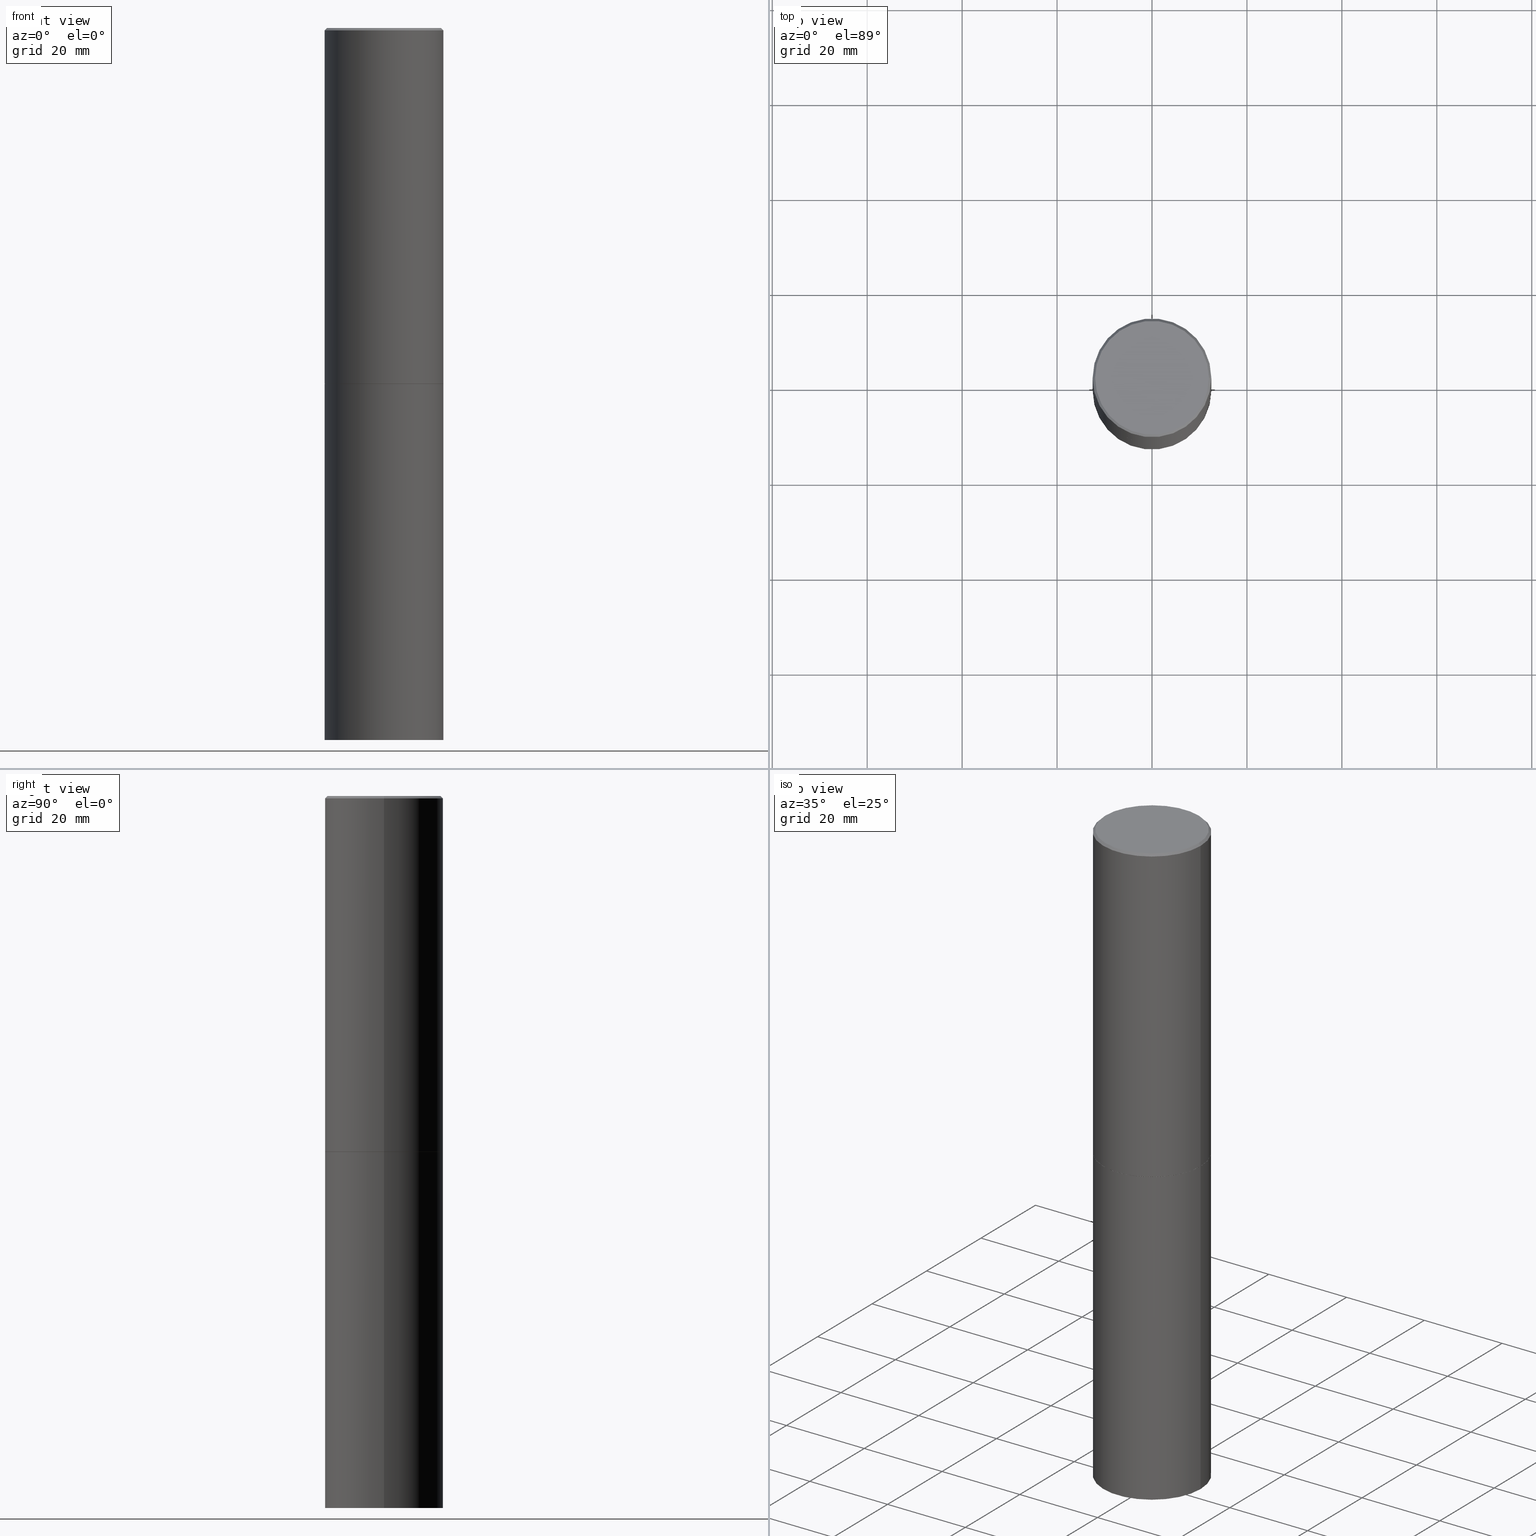
[diagram: canonical four-view strip — front | top / right | iso, engineering-drawing reading convention]
A machine part, canonical four-view strip (front | top / right | iso — engineering-drawing reading convention). The complete STEP part file that produces these views, byte-faithful:
ISO-10303-21;
HEADER;
FILE_DESCRIPTION (( 'STEP AP203' ),
    '1' );
FILE_NAME ('74882.STEP',
    '2024-05-03T15:04:33',
    ( '' ),
    ( '' ),
    'SwSTEP 2.0',
    'SolidWorks 2023',
    '' );
FILE_SCHEMA (( 'CONFIG_CONTROL_DESIGN' ));
ENDSEC;

DATA;
#1 = AXIS2_PLACEMENT_3D ( 'NONE', #193, #281, #167 ) ;
#2 = ADVANCED_FACE ( 'NONE', ( #120 ), #249, .T. ) ;
#3 = ORIENTED_EDGE ( 'NONE', *, *, #211, .T. ) ;
#4 = DIRECTION ( 'NONE',  ( -1.000000000000000000, 6.982962677686265922E-15, -4.876176775795935793E-29 ) ) ;
#5 = EDGE_CURVE ( 'NONE', #226, #203, #245, .T. ) ;
#6 = VERTEX_POINT ( 'NONE', #236 ) ;
#7 = VECTOR ( 'NONE', #366, 39.37007874015748143 ) ;
#8 = ADVANCED_FACE ( 'NONE', ( #47 ), #283, .T. ) ;
#9 = ORIENTED_EDGE ( 'NONE', *, *, #109, .F. ) ;
#10 = EDGE_LOOP ( 'NONE', ( #294, #41, #114, #116 ) ) ;
#11 = CALENDAR_DATE ( 2024, 3, 5 ) ;
#12 = ADVANCED_FACE ( 'NONE', ( #78 ), #76, .T. ) ;
#13 = CIRCLE ( 'NONE', #1, 0.4921499999999999764 ) ;
#14 = APPLICATION_PROTOCOL_DEFINITION ( 'international standard', 'config_control_design', 1994, #247 ) ;
#15 = CARTESIAN_POINT ( 'NONE',  ( 7.220735744022852519E-29, -1.030929694920215502E-14, -2.952700000000000102 ) ) ;
#16 = PERSON_AND_ORGANIZATION ( #33, #363 ) ;
#17 = ORIENTED_EDGE ( 'NONE', *, *, #345, .F. ) ;
#18 = CARTESIAN_POINT ( 'NONE',  ( 4.890937612370296805E-31, -6.982962677686323656E-17, -0.02000000000000009409 ) ) ;
#19 = AXIS2_PLACEMENT_3D ( 'NONE', #327, #299, #51 ) ;
#20 = DIRECTION ( 'NONE',  ( 1.000000000000000000, -6.982962677686265922E-15, 4.876176775795935793E-29 ) ) ;
#21 = CARTESIAN_POINT ( 'NONE',  ( -0.4911499999999999755, -6.814167848168200725E-15, -2.952699999999999214 ) ) ;
#22 = DATE_AND_TIME ( #268, #273 ) ;
#23 = FACE_OUTER_BOUND ( 'NONE', #233, .T. ) ;
#24 = EDGE_CURVE ( 'NONE', #58, #321, #112, .T. ) ;
#25 = DIRECTION ( 'NONE',  ( -2.445468806185136597E-29, 3.491481338843145583E-15, 1.000000000000000000 ) ) ;
#26 = APPROVAL_PERSON_ORGANIZATION ( #180, #326, #238 ) ;
#27 =( NAMED_UNIT ( * ) SI_UNIT ( $, .STERADIAN. ) SOLID_ANGLE_UNIT ( ) );
#28 = ORIENTED_EDGE ( 'NONE', *, *, #264, .F. ) ;
#29 = LINE ( 'NONE', #103, #70 ) ;
#30 = DIRECTION ( 'NONE',  ( -2.445468806185136597E-29, 3.491481338843145583E-15, 1.000000000000000000 ) ) ;
#31 = EDGE_CURVE ( 'NONE', #203, #90, #162, .T. ) ;
#32 = VERTEX_POINT ( 'NONE', #21 ) ;
#33 = PERSON ( 'UNSPECIFIED', 'UNSPECIFIED', 'UNSPECIFIED', ('UNSPECIFIED'), ('UNSPECIFIED'), ('UNSPECIFIED') ) ;
#34 = EDGE_LOOP ( 'NONE', ( #253, #251, #292, #135 ) ) ;
#35 = CIRCLE ( 'NONE', #56, 0.4921499999999996988 ) ;
#36 = CC_DESIGN_APPROVAL ( #326, ( #214 ) ) ;
#37 = DATE_AND_TIME ( #356, #139 ) ;
#38 = VERTEX_POINT ( 'NONE', #266 ) ;
#39 = PERSON_AND_ORGANIZATION ( #33, #363 ) ;
#40 = CARTESIAN_POINT ( 'NONE',  ( 3.436665081823440533E-15, 0.4921499999999793262, -5.905500000000001748 ) ) ;
#41 = ORIENTED_EDGE ( 'NONE', *, *, #345, .T. ) ;
#42 = COORDINATED_UNIVERSAL_TIME_OFFSET ( 5, 0, .BEHIND. ) ;
#43 = APPLICATION_PROTOCOL_DEFINITION ( 'international standard', 'config_control_design', 1994, #201 ) ;
#44 = EDGE_CURVE ( 'NONE', #71, #265, #170, .T. ) ;
#45 = DIRECTION ( 'NONE',  ( -0.7071067811868130271, 7.493145998871311837E-15, 0.7071067811862817853 ) ) ;
#46 = AXIS2_PLACEMENT_3D ( 'NONE', #15, #311, #61 ) ;
#47 = FACE_OUTER_BOUND ( 'NONE', #255, .T. ) ;
#48 =( NAMED_UNIT ( * ) PLANE_ANGLE_UNIT ( ) SI_UNIT ( $, .RADIAN. ) );
#49 = DIRECTION ( 'NONE',  ( -2.445468806185136877E-29, 3.491481338843145188E-15, 1.000000000000000000 ) ) ;
#50 = DIRECTION ( 'NONE',  ( -2.445468806185136877E-29, 3.491481338843145188E-15, 1.000000000000000000 ) ) ;
#51 = DIRECTION ( 'NONE',  ( -1.000000000000000000, 6.982962677686265922E-15, 0.000000000000000000 ) ) ;
#52 =( LENGTH_UNIT ( ) NAMED_UNIT ( * ) SI_UNIT ( $, .METRE. ) );
#53 = CYLINDRICAL_SURFACE ( 'NONE', #288, 0.4921499999999999764 ) ;
#54 = CIRCLE ( 'NONE', #302, 0.4921499999999999764 ) ;
#55 = CARTESIAN_POINT ( 'NONE',  ( 4.890937612370296805E-31, -6.982962677686323656E-17, -0.02000000000000009409 ) ) ;
#56 = AXIS2_PLACEMENT_3D ( 'NONE', #118, #285, #115 ) ;
#57 = AXIS2_PLACEMENT_3D ( 'NONE', #222, #88, #137 ) ;
#58 = VERTEX_POINT ( 'NONE', #83 ) ;
#59 = APPROVAL ( #64, 'UNSPECIFIED' ) ;
#60 = ORIENTED_EDGE ( 'NONE', *, *, #65, .T. ) ;
#61 = DIRECTION ( 'NONE',  ( 1.000000000000000000, -6.982962677686265922E-15, 0.000000000000000000 ) ) ;
#62 = ORIENTED_EDGE ( 'NONE', *, *, #176, .T. ) ;
#63 = AXIS2_PLACEMENT_3D ( 'NONE', #157, #122, #213 ) ;
#64 = APPROVAL_STATUS ( 'not_yet_approved' ) ;
#65 = EDGE_CURVE ( 'NONE', #90, #140, #128, .T. ) ;
#66 = COORDINATED_UNIVERSAL_TIME_OFFSET ( 5, 0, .BEHIND. ) ;
#67 = CARTESIAN_POINT ( 'NONE',  ( 7.220735744022851398E-29, -1.030929694920215344E-14, -2.952699999999999214 ) ) ;
#68 = APPROVAL_ROLE ( '' ) ;
#69 = EDGE_CURVE ( 'NONE', #58, #6, #239, .T. ) ;
#70 = VECTOR ( 'NONE', #337, 39.37007874015748143 ) ;
#71 = VERTEX_POINT ( 'NONE', #242 ) ;
#72 = PERSON_AND_ORGANIZATION_ROLE ( 'design_owner' ) ;
#73 = CC_DESIGN_DATE_AND_TIME_ASSIGNMENT ( #22, #361, ( #214 ) ) ;
#74 = SHAPE_DEFINITION_REPRESENTATION ( #221, #334 ) ;
#75 = ORIENTED_EDGE ( 'NONE', *, *, #261, .F. ) ;
#76 = CYLINDRICAL_SURFACE ( 'NONE', #165, 0.4921499999999998098 ) ;
#77 = PERSON_AND_ORGANIZATION ( #33, #363 ) ;
#78 = FACE_OUTER_BOUND ( 'NONE', #365, .T. ) ;
#79 = LOCAL_TIME ( 11, 4, 33.00000000000000000, #42 ) ;
#80 = LINE ( 'NONE', #298, #138 ) ;
#81 = CARTESIAN_POINT ( 'NONE',  ( 7.218290275216666916E-29, -1.030580546786331359E-14, -2.951700000000000212 ) ) ;
#82 = DIRECTION ( 'NONE',  ( 1.000000000000000000, -6.982962677686265922E-15, 4.876006802227162976E-29 ) ) ;
#83 = CARTESIAN_POINT ( 'NONE',  ( 0.4921499999999999764, -2.405560812836148932E-14, -5.905499999999999972 ) ) ;
#84 = AXIS2_PLACEMENT_3D ( 'NONE', #297, #333, #82 ) ;
#85 = CARTESIAN_POINT ( 'NONE',  ( 7.220735744022851398E-29, -1.030929694920215344E-14, -2.952699999999999214 ) ) ;
#86 = CC_DESIGN_DATE_AND_TIME_ASSIGNMENT ( #257, #153, ( #303 ) ) ;
#87 = VECTOR ( 'NONE', #218, 39.37007874015748143 ) ;
#88 = DIRECTION ( 'NONE',  ( -2.445468806185136597E-29, 3.491481338843145583E-15, 1.000000000000000000 ) ) ;
#89 = DIRECTION ( 'NONE',  ( 2.438088387897960049E-29, -3.491481338843145188E-15, -1.000000000000000000 ) ) ;
#90 = VERTEX_POINT ( 'NONE', #187 ) ;
#91 = EDGE_LOOP ( 'NONE', ( #17, #346, #309, #111 ) ) ;
#92 = DIRECTION ( 'NONE',  ( 1.000000000000000000, -6.982962677686264344E-15, 0.000000000000000000 ) ) ;
#93 = CONICAL_SURFACE ( 'NONE', #105, 0.4921499999999996988, 0.7853981633974472798 ) ;
#94 = DIRECTION ( 'NONE',  ( 1.000000000000000000, -6.982962677686265922E-15, 4.876176775795935793E-29 ) ) ;
#95 = EDGE_CURVE ( 'NONE', #203, #38, #106, .T. ) ;
#96 = ORIENTED_EDGE ( 'NONE', *, *, #256, .T. ) ;
#97 = CC_DESIGN_PERSON_AND_ORGANIZATION_ASSIGNMENT ( #354, #72, ( #175 ) ) ;
#98 = FACE_OUTER_BOUND ( 'NONE', #206, .T. ) ;
#99 = VECTOR ( 'NONE', #125, 39.37007874015748143 ) ;
#100 = ORIENTED_EDGE ( 'NONE', *, *, #24, .F. ) ;
#101 = FACE_OUTER_BOUND ( 'NONE', #195, .T. ) ;
#102 = CC_DESIGN_PERSON_AND_ORGANIZATION_ASSIGNMENT ( #39, #146, ( #303 ) ) ;
#103 = CARTESIAN_POINT ( 'NONE',  ( -0.4921499999999996988, 3.366835455046430506E-15, -0.02000000000000009409 ) ) ;
#104 = UNCERTAINTY_MEASURE_WITH_UNIT (LENGTH_MEASURE( 1.000000000000000082E-05 ), #325, 'distance_accuracy_value', 'NONE');
#105 = AXIS2_PLACEMENT_3D ( 'NONE', #18, #269, #182 ) ;
#106 = LINE ( 'NONE', #216, #240 ) ;
#107 = DIRECTION ( 'NONE',  ( 1.000000000000000000, -6.982962677686265922E-15, 4.876006802227162976E-29 ) ) ;
#108 = DIRECTION ( 'NONE',  ( -2.445468806185136597E-29, 3.491481338843145583E-15, 1.000000000000000000 ) ) ;
#109 = EDGE_CURVE ( 'NONE', #71, #38, #184, .T. ) ;
#110 = CIRCLE ( 'NONE', #46, 0.4921499999999999764 ) ;
#111 = ORIENTED_EDGE ( 'NONE', *, *, #332, .F. ) ;
#112 = CIRCLE ( 'NONE', #328, 0.4921499999999999764 ) ;
#113 = EDGE_LOOP ( 'NONE', ( #75, #28 ) ) ;
#114 = ORIENTED_EDGE ( 'NONE', *, *, #256, .F. ) ;
#115 = DIRECTION ( 'NONE',  ( 1.000000000000000000, -6.982962677686265922E-15, 0.000000000000000000 ) ) ;
#116 = ORIENTED_EDGE ( 'NONE', *, *, #69, .F. ) ;
#117 = PERSON_AND_ORGANIZATION_ROLE ( 'creator' ) ;
#118 = CARTESIAN_POINT ( 'NONE',  ( 4.890937612370296805E-31, -6.982962677686323656E-17, -0.02000000000000009409 ) ) ;
#119 = CC_DESIGN_PERSON_AND_ORGANIZATION_ASSIGNMENT ( #77, #185, ( #214 ) ) ;
#120 = FACE_OUTER_BOUND ( 'NONE', #91, .T. ) ;
#121 = AXIS2_PLACEMENT_3D ( 'NONE', #164, #30, #276 ) ;
#122 = DIRECTION ( 'NONE',  ( 2.438088387897960049E-29, -3.491481338843145188E-15, -1.000000000000000000 ) ) ;
#123 = DATE_AND_TIME ( #155, #79 ) ;
#124 = DIRECTION ( 'NONE',  ( -2.445468806185136597E-29, 3.491481338843145583E-15, 1.000000000000000000 ) ) ;
#125 = DIRECTION ( 'NONE',  ( -2.445468806185136877E-29, 3.491481338843145188E-15, 1.000000000000000000 ) ) ;
#126 = CONICAL_SURFACE ( 'NONE', #246, 0.4911499999999999755, 0.7853981633978239785 ) ;
#127 = CARTESIAN_POINT ( 'NONE',  ( -0.4921499999999998098, 3.496936074043331714E-15, -2.420853904668950949E-29 ) ) ;
#128 = LINE ( 'NONE', #127, #7 ) ;
#129 = EDGE_CURVE ( 'NONE', #265, #71, #223, .T. ) ;
#130 = DIRECTION ( 'NONE',  ( 1.000000000000000000, -6.982962677686264344E-15, 0.000000000000000000 ) ) ;
#131 = DESIGN_CONTEXT ( 'detailed design', #247, 'design' ) ;
#132 = CARTESIAN_POINT ( 'NONE',  ( 0.4921499999999999764, -1.374247054968660936E-14, -2.951700000000000212 ) ) ;
#133 = CIRCLE ( 'NONE', #220, 0.4921499999999996988 ) ;
#134 = CC_DESIGN_PERSON_AND_ORGANIZATION_ASSIGNMENT ( #232, #230, ( #224 ) ) ;
#135 = ORIENTED_EDGE ( 'NONE', *, *, #143, .F. ) ;
#136 = CARTESIAN_POINT ( 'NONE',  ( 3.297005828269567997E-15, 0.4721499999999996255, -1.644234401644689488E-15 ) ) ;
#137 = DIRECTION ( 'NONE',  ( 1.000000000000000000, -6.982962677686265922E-15, 4.876176775795935793E-29 ) ) ;
#138 = VECTOR ( 'NONE', #50, 39.37007874015748143 ) ;
#139 = LOCAL_TIME ( 11, 4, 33.00000000000000000, #152 ) ;
#140 = VERTEX_POINT ( 'NONE', #295 ) ;
#141 = DIMENSIONAL_EXPONENTS ( 1.000000000000000000, 0.000000000000000000, 0.000000000000000000, 0.000000000000000000, 0.000000000000000000, 0.000000000000000000, 0.000000000000000000 ) ;
#142 = DIRECTION ( 'NONE',  ( 1.000000000000000000, -6.982962677686264344E-15, 0.000000000000000000 ) ) ;
#143 = EDGE_CURVE ( 'NONE', #90, #203, #343, .T. ) ;
#144 = EDGE_LOOP ( 'NONE', ( #280, #172 ) ) ;
#145 = DIRECTION ( 'NONE',  ( -1.000000000000000000, 6.982962677686265922E-15, -4.876176775795935793E-29 ) ) ;
#146 = PERSON_AND_ORGANIZATION_ROLE ( 'classification_officer' ) ;
#147 = DIRECTION ( 'NONE',  ( -2.445468806185136597E-29, 3.491481338843145583E-15, 1.000000000000000000 ) ) ;
#148 = AXIS2_PLACEMENT_3D ( 'NONE', #335, #243, #217 ) ;
#149 = APPROVAL_PERSON_ORGANIZATION ( #16, #59, #68 ) ;
#150 = PLANE ( 'NONE',  #196 ) ;
#151 = ADVANCED_FACE ( 'NONE', ( #301 ), #53, .T. ) ;
#152 = COORDINATED_UNIVERSAL_TIME_OFFSET ( 5, 0, .BEHIND. ) ;
#153 = DATE_TIME_ROLE ( 'classification_date' ) ;
#154 = ORIENTED_EDGE ( 'NONE', *, *, #109, .T. ) ;
#155 = CALENDAR_DATE ( 2024, 3, 5 ) ;
#156 = CARTESIAN_POINT ( 'NONE',  ( -0.4921499999999999764, -1.196718392382684217E-14, -2.952700000000000102 ) ) ;
#157 = CARTESIAN_POINT ( 'NONE',  ( 3.436665081823367957E-15, 0.4921499999999896513, -2.952700000000001435 ) ) ;
#158 = PLANE ( 'NONE',  #63 ) ;
#159 = COORDINATED_UNIVERSAL_TIME_OFFSET ( 5, 0, .BEHIND. ) ;
#160 = DIRECTION ( 'NONE',  ( -2.445468806185136597E-29, 3.491481338843145583E-15, 1.000000000000000000 ) ) ;
#161 = CARTESIAN_POINT ( 'NONE',  ( 0.4921499999999996988, -3.446223716380120377E-15, -0.02000000000000009409 ) ) ;
#162 = CIRCLE ( 'NONE', #258, 0.4921499999999999764 ) ;
#163 = CARTESIAN_POINT ( 'NONE',  ( 0.000000000000000000, 0.000000000000000000, 0.000000000000000000 ) ) ;
#164 = CARTESIAN_POINT ( 'NONE',  ( 0.000000000000000000, 0.000000000000000000, 0.000000000000000000 ) ) ;
#165 = AXIS2_PLACEMENT_3D ( 'NONE', #331, #237, #364 ) ;
#166 = ORIENTED_EDGE ( 'NONE', *, *, #300, .F. ) ;
#167 = DIRECTION ( 'NONE',  ( 1.000000000000000000, -6.982962677686265922E-15, 0.000000000000000000 ) ) ;
#168 = EDGE_LOOP ( 'NONE', ( #282, #62, #357, #310 ) ) ;
#169 = EDGE_CURVE ( 'NONE', #265, #140, #29, .T. ) ;
#170 = CIRCLE ( 'NONE', #351, 0.4721499999999996255 ) ;
#171 = CC_DESIGN_SECURITY_CLASSIFICATION ( #303, ( #224 ) ) ;
#172 = ORIENTED_EDGE ( 'NONE', *, *, #44, .T. ) ;
#173 = DIRECTION ( 'NONE',  ( -2.445468806185136597E-29, 3.491481338843145583E-15, 1.000000000000000000 ) ) ;
#174 = PERSON_AND_ORGANIZATION ( #33, #363 ) ;
#175 = PRODUCT ( '74882', '74882', '', ( #262 ) ) ;
#176 = EDGE_CURVE ( 'NONE', #32, #90, #190, .T. ) ;
#177 = AXIS2_PLACEMENT_3D ( 'NONE', #136, #89, #4 ) ;
#178 = MANIFOLD_SOLID_BREP ( 'Body-Move/Copy2[1]', #296 ) ;
#179 = ORIENTED_EDGE ( 'NONE', *, *, #95, .T. ) ;
#180 = PERSON_AND_ORGANIZATION ( #33, #363 ) ;
#181 = ORIENTED_EDGE ( 'NONE', *, *, #332, .T. ) ;
#182 = DIRECTION ( 'NONE',  ( -1.000000000000000000, 6.982962677686265922E-15, 0.000000000000000000 ) ) ;
#183 = ADVANCED_FACE ( 'NONE', ( #23 ), #158, .F. ) ;
#184 = LINE ( 'NONE', #161, #87 ) ;
#185 = PERSON_AND_ORGANIZATION_ROLE ( 'creator' ) ;
#186 = AXIS2_PLACEMENT_3D ( 'NONE', #85, #275, #130 ) ;
#187 = CARTESIAN_POINT ( 'NONE',  ( -0.4921499999999999764, -1.690881473276754954E-15, -2.951700000000000212 ) ) ;
#188 = DIRECTION ( 'NONE',  ( -2.445468806185136597E-29, 3.491481338843145583E-15, 1.000000000000000000 ) ) ;
#189 = DIRECTION ( 'NONE',  ( 1.000000000000000000, -6.982962677686265922E-15, 0.000000000000000000 ) ) ;
#190 = LINE ( 'NONE', #270, #228 ) ;
#191 = AXIS2_PLACEMENT_3D ( 'NONE', #229, #147, #142 ) ;
#192 = ORIENTED_EDGE ( 'NONE', *, *, #44, .F. ) ;
#193 = CARTESIAN_POINT ( 'NONE',  ( 7.220735744022852519E-29, -1.030929694920215502E-14, -2.952700000000000102 ) ) ;
#194 = ORIENTED_EDGE ( 'NONE', *, *, #211, .F. ) ;
#195 = EDGE_LOOP ( 'NONE', ( #227, #340, #179, #166 ) ) ;
#196 = AXIS2_PLACEMENT_3D ( 'NONE', #40, #355, #145 ) ;
#197 = CC_DESIGN_APPROVAL ( #59, ( #303 ) ) ;
#198 = CALENDAR_DATE ( 2024, 3, 5 ) ;
#199 = ADVANCED_FACE ( 'NONE', ( #101 ), #267, .T. ) ;
#200 = CARTESIAN_POINT ( 'NONE',  ( -0.4721499999999996255, 3.331920641657999252E-15, 8.537024980177643606E-18 ) ) ;
#201 = APPLICATION_CONTEXT ( 'configuration controlled 3d designs of mechanical parts and assemblies' ) ;
#202 = CARTESIAN_POINT ( 'NONE',  ( -0.4921499999999999764, -1.196718392382684217E-14, -5.905499999999999972 ) ) ;
#203 = VERTEX_POINT ( 'NONE', #132 ) ;
#204 = AXIS2_PLACEMENT_3D ( 'NONE', #67, #260, #94 ) ;
#205 = LENGTH_MEASURE_WITH_UNIT ( LENGTH_MEASURE( 0.02539999999999999897 ), #52 );
#206 = EDGE_LOOP ( 'NONE', ( #9, #244, #349, #284 ) ) ;
#207 = CC_DESIGN_PERSON_AND_ORGANIZATION_ASSIGNMENT ( #174, #117, ( #224 ) ) ;
#208 = DIRECTION ( 'NONE',  ( 1.000000000000000000, -6.982962677686265922E-15, 0.000000000000000000 ) ) ;
#209 = DIRECTION ( 'NONE',  ( -2.445468806185136597E-29, 3.491481338843145583E-15, 1.000000000000000000 ) ) ;
#210 = DIRECTION ( 'NONE',  ( 1.000000000000000000, -6.982962677686265922E-15, 0.000000000000000000 ) ) ;
#211 = EDGE_CURVE ( 'NONE', #38, #140, #133, .T. ) ;
#212 = CIRCLE ( 'NONE', #186, 0.4911499999999999755 ) ;
#213 = DIRECTION ( 'NONE',  ( -1.000000000000000000, 6.982962677686265922E-15, -4.876176775795935793E-29 ) ) ;
#214 = PRODUCT_DEFINITION ( 'UNKNOWN', '', #224, #131 ) ;
#215 = DIRECTION ( 'NONE',  ( 1.000000000000000000, -6.982962677686264344E-15, 0.000000000000000000 ) ) ;
#216 = CARTESIAN_POINT ( 'NONE',  ( 0.4921499999999998098, -3.436665081823294593E-15, 2.399810400207968762E-29 ) ) ;
#217 = DIRECTION ( 'NONE',  ( 1.000000000000000000, 0.000000000000000000, 0.000000000000000000 ) ) ;
#218 = DIRECTION ( 'NONE',  ( 0.7071067811865467956, -7.319954787623254468E-15, -0.7071067811865482389 ) ) ;
#219 = ORIENTED_EDGE ( 'NONE', *, *, #322, .F. ) ;
#220 = AXIS2_PLACEMENT_3D ( 'NONE', #55, #305, #336 ) ;
#221 = PRODUCT_DEFINITION_SHAPE ( 'NONE', 'NONE',  #214 ) ;
#222 = CARTESIAN_POINT ( 'NONE',  ( 0.000000000000000000, 0.000000000000000000, 0.000000000000000000 ) ) ;
#223 = CIRCLE ( 'NONE', #84, 0.4721499999999996255 ) ;
#224 = PRODUCT_DEFINITION_FORMATION_WITH_SPECIFIED_SOURCE ( 'ANY', '', #175, .NOT_KNOWN. ) ;
#225 = ORIENTED_EDGE ( 'NONE', *, *, #169, .F. ) ;
#226 = VERTEX_POINT ( 'NONE', #250 ) ;
#227 = ORIENTED_EDGE ( 'NONE', *, *, #65, .F. ) ;
#228 = VECTOR ( 'NONE', #45, 39.37007874015748854 ) ;
#229 = CARTESIAN_POINT ( 'NONE',  ( 7.220735744022851398E-29, -1.030929694920215344E-14, -2.952699999999999214 ) ) ;
#230 = PERSON_AND_ORGANIZATION_ROLE ( 'design_supplier' ) ;
#231 = ADVANCED_FACE ( 'NONE', ( #248 ), #341, .F. ) ;
#232 = PERSON_AND_ORGANIZATION ( #33, #363 ) ;
#233 = EDGE_LOOP ( 'NONE', ( #96, #181 ) ) ;
#234 = APPROVAL ( #350, 'UNSPECIFIED' ) ;
#235 = CIRCLE ( 'NONE', #191, 0.4911499999999999755 ) ;
#236 = CARTESIAN_POINT ( 'NONE',  ( 0.4921499999999999764, -1.374596203102545079E-14, -2.952700000000000102 ) ) ;
#237 = DIRECTION ( 'NONE',  ( -2.445468806185136597E-29, 3.491481338843145583E-15, 1.000000000000000000 ) ) ;
#238 = APPROVAL_ROLE ( '' ) ;
#239 = LINE ( 'NONE', #359, #99 ) ;
#240 = VECTOR ( 'NONE', #49, 39.37007874015748143 ) ;
#241 = CC_DESIGN_APPROVAL ( #234, ( #224 ) ) ;
#242 = CARTESIAN_POINT ( 'NONE',  ( 0.4721499999999996255, -3.342703923013973396E-15, 8.537024980224040028E-18 ) ) ;
#243 = DIRECTION ( 'NONE',  ( 0.000000000000000000, 0.000000000000000000, 1.000000000000000000 ) ) ;
#244 = ORIENTED_EDGE ( 'NONE', *, *, #129, .F. ) ;
#245 = LINE ( 'NONE', #323, #338 ) ;
#246 = AXIS2_PLACEMENT_3D ( 'NONE', #330, #209, #215 ) ;
#247 = APPLICATION_CONTEXT ( 'configuration controlled 3d designs of mechanical parts and assemblies' ) ;
#248 = FACE_OUTER_BOUND ( 'NONE', #144, .T. ) ;
#249 = CYLINDRICAL_SURFACE ( 'NONE', #57, 0.4921499999999999764 ) ;
#250 = CARTESIAN_POINT ( 'NONE',  ( 0.4911499999999999755, -1.373897906834776162E-14, -2.952699999999999214 ) ) ;
#251 = ORIENTED_EDGE ( 'NONE', *, *, #264, .T. ) ;
#252 = CONICAL_SURFACE ( 'NONE', #259, 0.4911499999999999755, 0.7853981633978239785 ) ;
#253 = ORIENTED_EDGE ( 'NONE', *, *, #176, .F. ) ;
#254 = FACE_OUTER_BOUND ( 'NONE', #34, .T. ) ;
#255 = EDGE_LOOP ( 'NONE', ( #192, #154, #3, #225 ) ) ;
#256 = EDGE_CURVE ( 'NONE', #6, #342, #13, .T. ) ;
#257 = DATE_AND_TIME ( #11, #358 ) ;
#258 = AXIS2_PLACEMENT_3D ( 'NONE', #271, #108, #189 ) ;
#259 = AXIS2_PLACEMENT_3D ( 'NONE', #286, #173, #92 ) ;
#260 = DIRECTION ( 'NONE',  ( -2.438088387897960049E-29, 3.491481338843145188E-15, 1.000000000000000000 ) ) ;
#261 = EDGE_CURVE ( 'NONE', #226, #32, #212, .T. ) ;
#262 = MECHANICAL_CONTEXT ( 'NONE', #201, 'mechanical' ) ;
#263 = DIRECTION ( 'NONE',  ( 1.000000000000000000, -6.982962677686265922E-15, 0.000000000000000000 ) ) ;
#264 = EDGE_CURVE ( 'NONE', #32, #226, #235, .T. ) ;
#265 = VERTEX_POINT ( 'NONE', #200 ) ;
#266 = CARTESIAN_POINT ( 'NONE',  ( 0.4921499999999996988, -3.446223716380120377E-15, -0.02000000000000009409 ) ) ;
#267 = CYLINDRICAL_SURFACE ( 'NONE', #121, 0.4921499999999998098 ) ;
#268 = CALENDAR_DATE ( 2024, 3, 5 ) ;
#269 = DIRECTION ( 'NONE',  ( 2.445468806185136597E-29, -3.491481338843145583E-15, -1.000000000000000000 ) ) ;
#270 = CARTESIAN_POINT ( 'NONE',  ( -0.4911499999999999755, -6.819466302516420761E-15, -2.952699999999999214 ) ) ;
#271 = CARTESIAN_POINT ( 'NONE',  ( 7.218290275216666916E-29, -1.030580546786331359E-14, -2.951700000000000212 ) ) ;
#272 = AXIS2_PLACEMENT_3D ( 'NONE', #81, #188, #210 ) ;
#273 = LOCAL_TIME ( 11, 4, 33.00000000000000000, #159 ) ;
#274 = CARTESIAN_POINT ( 'NONE',  ( 1.444171603492632270E-28, -2.061894304653819197E-14, -5.905499999999999972 ) ) ;
#275 = DIRECTION ( 'NONE',  ( -2.445468806185136597E-29, 3.491481338843145583E-15, 1.000000000000000000 ) ) ;
#276 = DIRECTION ( 'NONE',  ( 1.000000000000000000, -6.982962677686265922E-15, 4.876176775795935793E-29 ) ) ;
#277 = ADVANCED_FACE ( 'NONE', ( #352 ), #315, .F. ) ;
#278 = CLOSED_SHELL ( 'NONE', ( #304, #12, #8, #347, #199, #339, #277, #231 ) ) ;
#279 = PRODUCT_RELATED_PRODUCT_CATEGORY ( 'detail', '', ( #175 ) ) ;
#280 = ORIENTED_EDGE ( 'NONE', *, *, #129, .T. ) ;
#281 = DIRECTION ( 'NONE',  ( -2.445468806185136597E-29, 3.491481338843145583E-15, 1.000000000000000000 ) ) ;
#282 = ORIENTED_EDGE ( 'NONE', *, *, #261, .T. ) ;
#283 = CONICAL_SURFACE ( 'NONE', #19, 0.4921499999999996988, 0.7853981633974472798 ) ;
#284 = ORIENTED_EDGE ( 'NONE', *, *, #300, .T. ) ;
#285 = DIRECTION ( 'NONE',  ( -2.445468806185136597E-29, 3.491481338843145583E-15, 1.000000000000000000 ) ) ;
#286 = CARTESIAN_POINT ( 'NONE',  ( 7.220735744022851398E-29, -1.030929694920215344E-14, -2.952699999999999214 ) ) ;
#287 = APPROVAL_DATE_TIME ( #291, #234 ) ;
#288 = AXIS2_PLACEMENT_3D ( 'NONE', #163, #160, #20 ) ;
#289 = LOCAL_TIME ( 11, 4, 33.00000000000000000, #66 ) ;
#290 = CARTESIAN_POINT ( 'NONE',  ( 1.444171603492632270E-28, -2.061894304653819197E-14, -5.905499999999999972 ) ) ;
#291 = DATE_AND_TIME ( #198, #289 ) ;
#292 = ORIENTED_EDGE ( 'NONE', *, *, #5, .T. ) ;
#293 = APPROVAL_STATUS ( 'not_yet_approved' ) ;
#294 = ORIENTED_EDGE ( 'NONE', *, *, #24, .T. ) ;
#295 = CARTESIAN_POINT ( 'NONE',  ( -0.4921499999999996988, 3.366835455046430506E-15, -0.02000000000000009409 ) ) ;
#296 = CLOSED_SHELL ( 'NONE', ( #151, #306, #183, #2 ) ) ;
#297 = CARTESIAN_POINT ( 'NONE',  ( -2.087702828670439639E-46, 2.980686340760894400E-32, 8.537024980200822558E-18 ) ) ;
#298 = CARTESIAN_POINT ( 'NONE',  ( -0.4921499999999999764, 3.496936074043332897E-15, -2.420853904668951509E-29 ) ) ;
#299 = DIRECTION ( 'NONE',  ( 2.445468806185136597E-29, -3.491481338843145583E-15, -1.000000000000000000 ) ) ;
#300 = EDGE_CURVE ( 'NONE', #140, #38, #35, .T. ) ;
#301 = FACE_OUTER_BOUND ( 'NONE', #10, .T. ) ;
#302 = AXIS2_PLACEMENT_3D ( 'NONE', #290, #317, #263 ) ;
#303 = SECURITY_CLASSIFICATION ( '', '', #316 ) ;
#304 = ADVANCED_FACE ( 'NONE', ( #348 ), #252, .T. ) ;
#305 = DIRECTION ( 'NONE',  ( -2.445468806185136597E-29, 3.491481338843145583E-15, 1.000000000000000000 ) ) ;
#306 = ADVANCED_FACE ( 'NONE', ( #314 ), #150, .T. ) ;
#307 = MANIFOLD_SOLID_BREP ( 'Body-Move/Copy2[2]', #278 ) ;
#308 =( GEOMETRIC_REPRESENTATION_CONTEXT ( 3 ) GLOBAL_UNCERTAINTY_ASSIGNED_CONTEXT ( ( #104 ) ) GLOBAL_UNIT_ASSIGNED_CONTEXT ( ( #325, #48, #27 ) ) REPRESENTATION_CONTEXT ( 'NONE', 'WORKASPACE' ) );
#309 = ORIENTED_EDGE ( 'NONE', *, *, #69, .T. ) ;
#310 = ORIENTED_EDGE ( 'NONE', *, *, #5, .F. ) ;
#311 = DIRECTION ( 'NONE',  ( -2.445468806185136597E-29, 3.491481338843145583E-15, 1.000000000000000000 ) ) ;
#312 = ORIENTED_EDGE ( 'NONE', *, *, #31, .T. ) ;
#313 = COORDINATED_UNIVERSAL_TIME_OFFSET ( 5, 0, .BEHIND. ) ;
#314 = FACE_OUTER_BOUND ( 'NONE', #344, .T. ) ;
#315 = PLANE ( 'NONE',  #204 ) ;
#316 = SECURITY_CLASSIFICATION_LEVEL ( 'unclassified' ) ;
#317 = DIRECTION ( 'NONE',  ( -2.445468806185136597E-29, 3.491481338843145583E-15, 1.000000000000000000 ) ) ;
#318 = PERSON_AND_ORGANIZATION ( #33, #363 ) ;
#319 = ORIENTED_EDGE ( 'NONE', *, *, #95, .F. ) ;
#320 = APPROVAL_DATE_TIME ( #37, #59 ) ;
#321 = VERTEX_POINT ( 'NONE', #202 ) ;
#322 = EDGE_CURVE ( 'NONE', #321, #58, #54, .T. ) ;
#323 = CARTESIAN_POINT ( 'NONE',  ( 0.4911499999999999755, -1.373897906834776162E-14, -2.952699999999999214 ) ) ;
#324 = APPROVAL_DATE_TIME ( #123, #326 ) ;
#325 =( CONVERSION_BASED_UNIT ( 'INCH', #205 ) LENGTH_UNIT ( ) NAMED_UNIT ( #141 ) );
#326 = APPROVAL ( #293, 'UNSPECIFIED' ) ;
#327 = CARTESIAN_POINT ( 'NONE',  ( 4.890937612370296805E-31, -6.982962677686323656E-17, -0.02000000000000009409 ) ) ;
#328 = AXIS2_PLACEMENT_3D ( 'NONE', #274, #124, #208 ) ;
#329 = APPROVAL_PERSON_ORGANIZATION ( #318, #234, #353 ) ;
#330 = CARTESIAN_POINT ( 'NONE',  ( 7.220735744022851398E-29, -1.030929694920215344E-14, -2.952699999999999214 ) ) ;
#331 = CARTESIAN_POINT ( 'NONE',  ( 0.000000000000000000, 0.000000000000000000, 0.000000000000000000 ) ) ;
#332 = EDGE_CURVE ( 'NONE', #342, #6, #110, .T. ) ;
#333 = DIRECTION ( 'NONE',  ( -2.445468806185136597E-29, 3.491481338843145583E-15, 1.000000000000000000 ) ) ;
#334 = ADVANCED_BREP_SHAPE_REPRESENTATION ( '74882', ( #178, #307, #148 ), #308 ) ;
#335 = CARTESIAN_POINT ( 'NONE',  ( 0.000000000000000000, 0.000000000000000000, 0.000000000000000000 ) ) ;
#336 = DIRECTION ( 'NONE',  ( 1.000000000000000000, -6.982962677686265922E-15, 0.000000000000000000 ) ) ;
#337 = DIRECTION ( 'NONE',  ( -0.7071067811865467956, 2.468850131082249172E-15, -0.7071067811865482389 ) ) ;
#338 = VECTOR ( 'NONE', #360, 39.37007874015748854 ) ;
#339 = ADVANCED_FACE ( 'NONE', ( #254 ), #126, .T. ) ;
#340 = ORIENTED_EDGE ( 'NONE', *, *, #143, .T. ) ;
#341 = PLANE ( 'NONE',  #177 ) ;
#342 = VERTEX_POINT ( 'NONE', #156 ) ;
#343 = CIRCLE ( 'NONE', #272, 0.4921499999999999764 ) ;
#344 = EDGE_LOOP ( 'NONE', ( #100, #219 ) ) ;
#345 = EDGE_CURVE ( 'NONE', #321, #342, #80, .T. ) ;
#346 = ORIENTED_EDGE ( 'NONE', *, *, #322, .T. ) ;
#347 = ADVANCED_FACE ( 'NONE', ( #98 ), #93, .T. ) ;
#348 = FACE_OUTER_BOUND ( 'NONE', #168, .T. ) ;
#349 = ORIENTED_EDGE ( 'NONE', *, *, #169, .T. ) ;
#350 = APPROVAL_STATUS ( 'not_yet_approved' ) ;
#351 = AXIS2_PLACEMENT_3D ( 'NONE', #362, #25, #107 ) ;
#352 = FACE_OUTER_BOUND ( 'NONE', #113, .T. ) ;
#353 = APPROVAL_ROLE ( '' ) ;
#354 = PERSON_AND_ORGANIZATION ( #33, #363 ) ;
#355 = DIRECTION ( 'NONE',  ( 2.438088387897960049E-29, -3.491481338843145188E-15, -1.000000000000000000 ) ) ;
#356 = CALENDAR_DATE ( 2024, 3, 5 ) ;
#357 = ORIENTED_EDGE ( 'NONE', *, *, #31, .F. ) ;
#358 = LOCAL_TIME ( 11, 4, 33.00000000000000000, #313 ) ;
#359 = CARTESIAN_POINT ( 'NONE',  ( 0.4921499999999999764, -3.436665081823295777E-15, 2.399810400207969603E-29 ) ) ;
#360 = DIRECTION ( 'NONE',  ( 0.7071067811868130271, -2.468850131085038979E-15, 0.7071067811862817853 ) ) ;
#361 = DATE_TIME_ROLE ( 'creation_date' ) ;
#362 = CARTESIAN_POINT ( 'NONE',  ( -2.087702828670439639E-46, 2.980686340760894400E-32, 8.537024980200822558E-18 ) ) ;
#363 = ORGANIZATION ( 'UNSPECIFIED', 'UNSPECIFIED', '' ) ;
#364 = DIRECTION ( 'NONE',  ( 1.000000000000000000, -6.982962677686265922E-15, 4.876176775795935793E-29 ) ) ;
#365 = EDGE_LOOP ( 'NONE', ( #312, #60, #194, #319 ) ) ;
#366 = DIRECTION ( 'NONE',  ( -2.445468806185136877E-29, 3.491481338843145188E-15, 1.000000000000000000 ) ) ;
ENDSEC;
END-ISO-10303-21;
